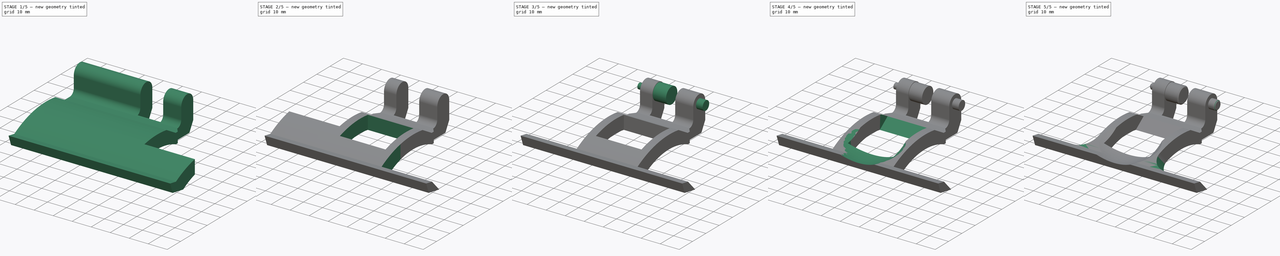
[diagram: build sequence overview — one tinted view per stage of 5, left to right]
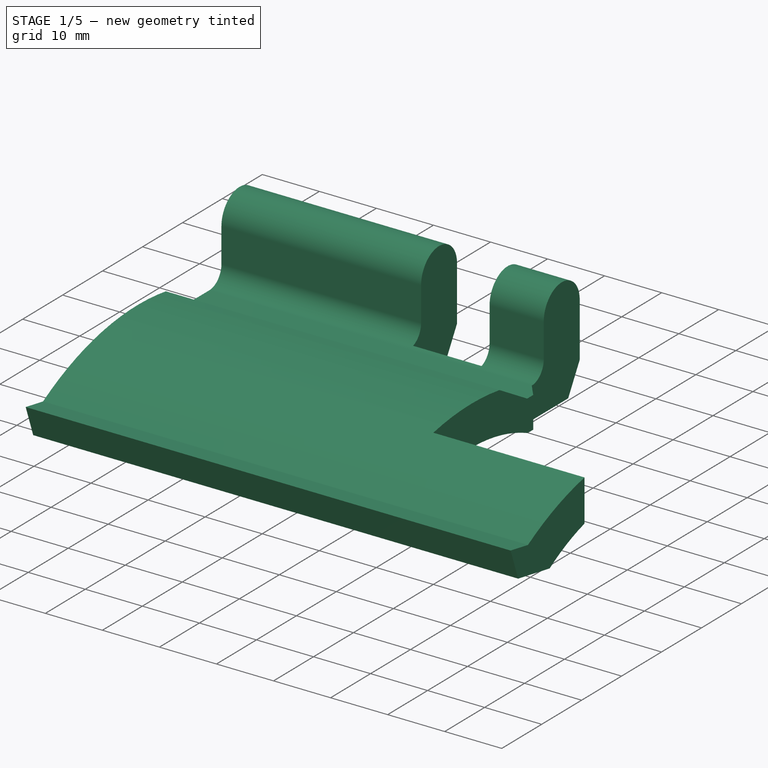
[diagram: stage 1 of 5 — iso view after this stage's code; geometry added in this stage tinted green]
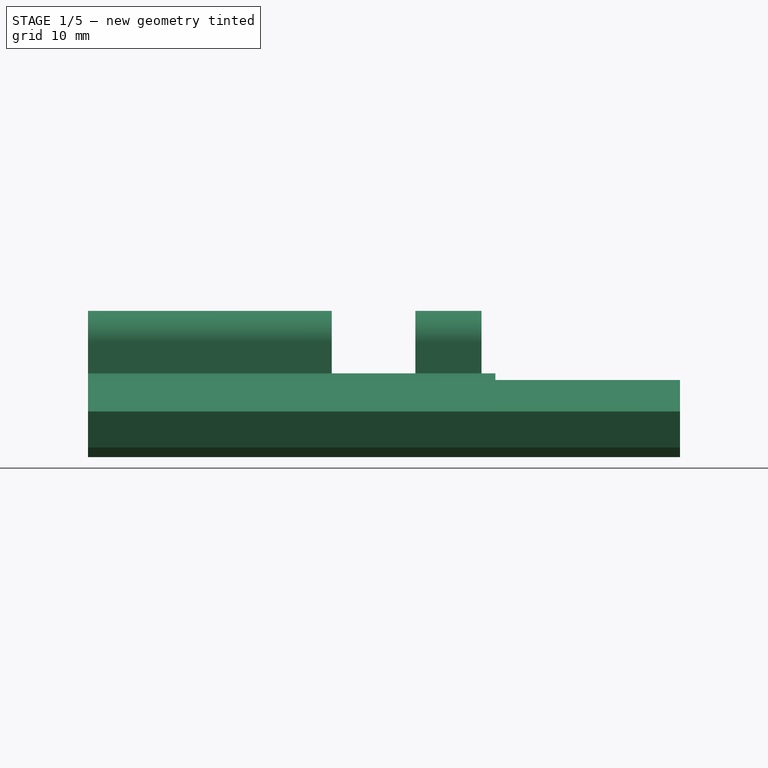
[diagram: stage 1 of 5 — front view after this stage's code; geometry added in this stage tinted green]
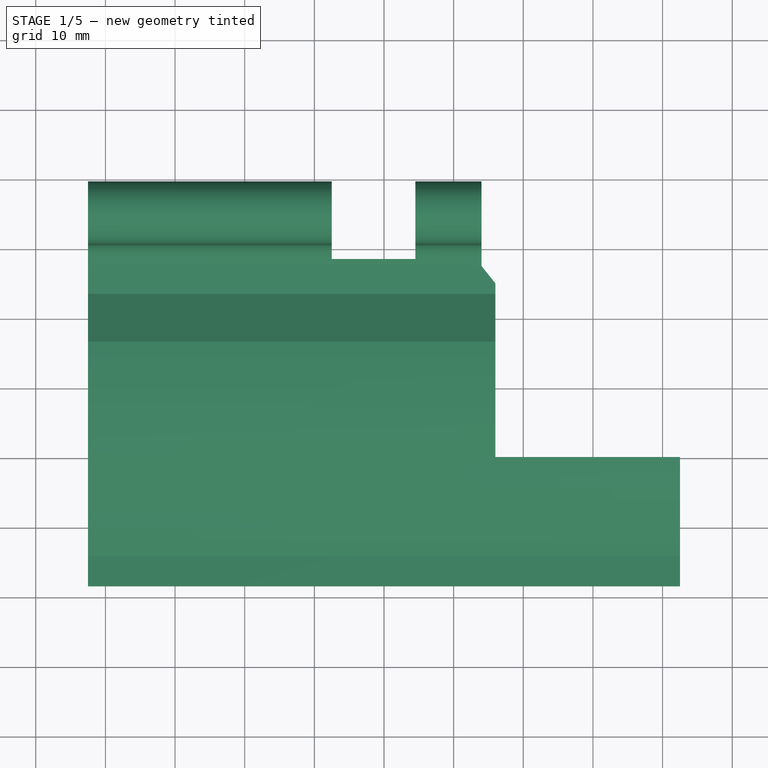
[diagram: stage 1 of 5 — top view after this stage's code; geometry added in this stage tinted green]
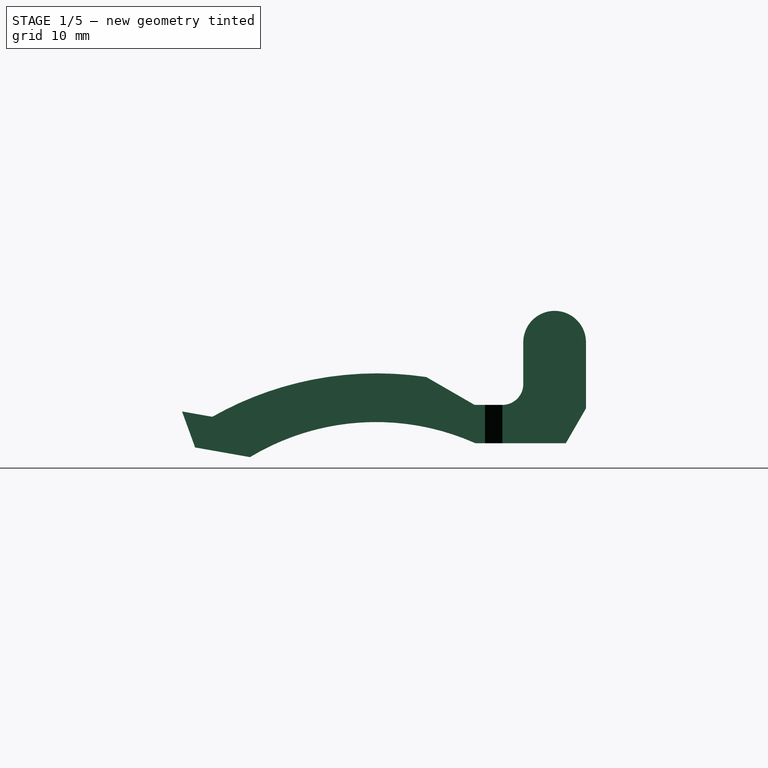
[diagram: stage 1 of 5 — right view after this stage's code; geometry added in this stage tinted green]
FCSTD DOCUMENT  (FreeCAD 0.18.4R3_voidlinux)
Label: pedal_plunger
License: All rights reserved
LicenseURL: http://en.wikipedia.org/wiki/All_rights_reserved
objects: Sketcher::SketchObject×11, PartDesign::Pocket×7, PartDesign::Pad×4, PartDesign::Mirrored×2, PartDesign::Plane×2, PartDesign::SubtractiveSphere×1, PartDesign::Chamfer×1, PartDesign::Fillet×1, PartDesign::Body×1, App::Part×1
note: 42 computed .brp shape members not serialized (recipe doc carries the construction recipe); baked Part::Feature solids carry a one-line shape summary decoded from their .brp

FEATURE [Sketcher::SketchObject] Sketch  label="base_sketch"
  MapMode = 5
  Placement = pos=(0,0,0) rot=(0.57735,0.57735,0.57735;2.0944rad)
  Support = -> [YZ_Plane001]
  sketch-geometry (14):
    g0: LineSegment StartX=23.6132 StartY=0 StartZ=0 EndX=36.6132 EndY=0 EndZ=0
    g1: LineSegment StartX=36.6132 StartY=0 StartZ=0 EndX=39.5 EndY=5 EndZ=0
    g2: LineSegment StartX=39.5 StartY=5 StartZ=0 EndX=39.5 EndY=14.5 EndZ=0
    g3: LineSegment StartX=30.5 StartY=14.5 StartZ=0 EndX=30.5 EndY=8.5 EndZ=0
    g4: ArcOfCircle CenterX=35 CenterY=14.5 CenterZ=0 NormalX=0 NormalY=0 NormalZ=1 AngleXU=0 Radius=4.5 StartAngle=0 EndAngle=3.14159
    g5: LineSegment [constr] StartX=30.5 StartY=19 StartZ=0 EndX=39.5 EndY=19 EndZ=0
    g6: LineSegment StartX=27.5 StartY=5.5 StartZ=0 EndX=23.5 EndY=5.5 EndZ=0
    g7: ArcOfCircle CenterX=9.35038 CenterY=-31.962 CenterZ=0 NormalX=0 NormalY=0 NormalZ=1 AngleXU=0 Radius=35 StartAngle=1.15107 EndAngle=2.114
    g8: LineSegment StartX=-8.74043 StartY=-2 StartZ=0 EndX=-16.6189 EndY=-0.610815 EndZ=0
    g9: LineSegment StartX=-16.6189 StartY=-0.610815 StartZ=0 EndX=-18.5 EndY=4.55749 EndZ=0
    g10: LineSegment StartX=-18.5 StartY=4.55749 StartZ=0 EndX=-14.1536 EndY=3.7911 EndZ=0
    g11: ArcOfCircle CenterX=27.5 CenterY=8.5 CenterZ=0 NormalX=0 NormalY=0 NormalZ=1 AngleXU=0 Radius=3 StartAngle=4.71239 EndAngle=6.28319
    g12: LineSegment StartX=23.5 StartY=5.5 StartZ=0 EndX=16.5718 EndY=9.5 EndZ=0
    g13: ArcOfCircle CenterX=9.5 CenterY=-37.9762 CenterZ=0 NormalX=0 NormalY=0 NormalZ=1 AngleXU=0 Radius=48 StartAngle=1.42293 EndAngle=2.08608
  constraints (43):
    c: PointOnObject(g0,g-1)
    c: PointOnObject(g0,g-1)
    c: Coincident(g1,g0)
    c: Coincident(g2,g1)
    c: Vertical(g2)
    c: Vertical(g3)
    c: Tangent(g2,g4) = -1.5708
    c: Tangent(g4,g3) = -1.5708
    c: Horizontal(g5)
    c: Tangent(g5,g4)
    c: PointOnObject(g5,g3)
    c: PointOnObject(g5,g2)
    c: Distance(g5) = 9
    c: DistanceY(g0,g5) = 19
    c: Horizontal(g6)
    c: Coincident(g9,g8)
    c: Coincident(g10,g9)
    c: Distance(g6) = 4
    c: Angle(g1,g0) = 2.0944
    c: DistanceY(g-1,g1) = 5
    c: Tangent(g11,g6) = 1.5708
    c: Tangent(g3,g11) = 1.5708
    c: Radius(g11) = 3
    c: Distance(g3) = 6
    c: DistanceX(g4) = 35
    c: Radius(g7) = 35
    c: Angle(g8,g-1) = 0.174533
    c: Distance(g9) = 5.5
    c: Angle(g8,g9) = 2.0944
    c: DistanceX(g9,g2) = 58
    c: Coincident(g7,g0)
    c: Distance(g0) = 13
    c: Coincident(g12,g6)
    c: Coincident(g13,g12)
    c: Coincident(g13,g10)
    c: Angle(g12,g-1) = 0.523599
    c: Distance(g12) = 8
    c: Radius(g13) = 48
    c: DistanceX(g-2,g13) = 9.5
    c: Parallel(g10,g8)
    c: Coincident(g8,g7)
    c: DistanceY(g7,g-1) = 2
    c: Distance(g8) = 8
FEATURE [PartDesign::Pad] Pad  label="base"
  Length = 85
  Length2 = 100
  Midplane = true
  Placement = pos=(0,0,0) rot=(0.57735,0.57735,0.57735;2.0944rad)
  Profile = -> Sketch
  Refine = true
  Type = 0
FEATURE [Sketcher::SketchObject] Sketch001  label="middle_groove_sketch"
  ExternalGeometry = -> [Pad]
  MapMode = 5
  Placement = pos=(0,0,0) rot=(0.707107,0.707107,0;3.14159rad)
  Support = -> [Pad]
  sketch-geometry (4):
    g0: LineSegment StartX=28.5 StartY=4.5 StartZ=0 EndX=39.5 EndY=4.5 EndZ=0
    g1: LineSegment StartX=39.5 StartY=4.5 StartZ=0 EndX=39.5 EndY=-7.5 EndZ=0
    g2: LineSegment StartX=39.5 StartY=-7.5 StartZ=0 EndX=28.5 EndY=-7.5 EndZ=0
    g3: LineSegment StartX=28.5 StartY=-7.5 StartZ=0 EndX=28.5 EndY=4.5 EndZ=0
  constraints (12):
    c: Coincident(g0,g1)
    c: Coincident(g1,g2)
    c: Coincident(g2,g3)
    c: Coincident(g3,g0)
    c: Horizontal(g0)
    c: Horizontal(g2)
    c: Vertical(g3)
    c: PointOnObject(g1,g-3)
    c: Distance(g1) = 12
    c: Distance(g0) = 11
    c: DistanceY(g-1,g1) = -7.5
    c: Vertical(g1)
FEATURE [PartDesign::Pocket] Pocket  label="middle_groove"
  BaseFeature = -> Pad
  Length = 5
  Length2 = 100
  Placement = pos=(0,0,0) rot=(0.57735,0.57735,0.57735;2.0944rad)
  Profile = -> Sketch001
  Refine = true
  Type = 1
FEATURE [Sketcher::SketchObject] Sketch002  label="side_cut_sketch"
  ExternalGeometry = -> [Pocket]
  MapMode = 5
  Placement = pos=(0,0,0) rot=(0.707107,0.707107,0;3.14159rad)
  Support = -> [Pocket]
  sketch-geometry (6):
    g0: LineSegment StartX=0 StartY=42.5 StartZ=0 EndX=39.5 EndY=42.5 EndZ=0
    g1: LineSegment StartX=39.5 StartY=42.5 StartZ=0 EndX=39.5 EndY=14 EndZ=0
    g2: LineSegment StartX=39.5 StartY=14 StartZ=0 EndX=27.5 EndY=14 EndZ=0
    g3: LineSegment StartX=27.5 StartY=14 StartZ=0 EndX=25 EndY=16 EndZ=0
    g4: LineSegment StartX=25 StartY=16 StartZ=0 EndX=0 EndY=16 EndZ=0
    g5: LineSegment StartX=0 StartY=16 StartZ=0 EndX=0 EndY=42.5 EndZ=0
  constraints (17):
    c: Horizontal(g0)
    c: Coincident(g0,g1)
    c: Vertical(g1)
    c: Coincident(g1,g2)
    c: Horizontal(g2)
    c: Coincident(g2,g3)
    c: Coincident(g3,g4)
    c: Horizontal(g4)
    c: Coincident(g4,g5)
    c: Vertical(g5)
    c: Coincident(g0,g5)
    c: Distance(g2) = 12
    c: PointOnObject(g0,g-2)
    c: Distance(g-1,g4) = 16
    c: Distance(g4) = 25
    c: Coincident(g0,g-5)
    c: DistanceY(g-1,g1) = 14
FEATURE [PartDesign::Pocket] Pocket001  label="side_cut"
  BaseFeature = -> Pocket
  Length = 5
  Length2 = 100
  Placement = pos=(0,0,0) rot=(0.57735,0.57735,0.57735;2.0944rad)
  Profile = -> Sketch002
  Refine = true
  Type = 1
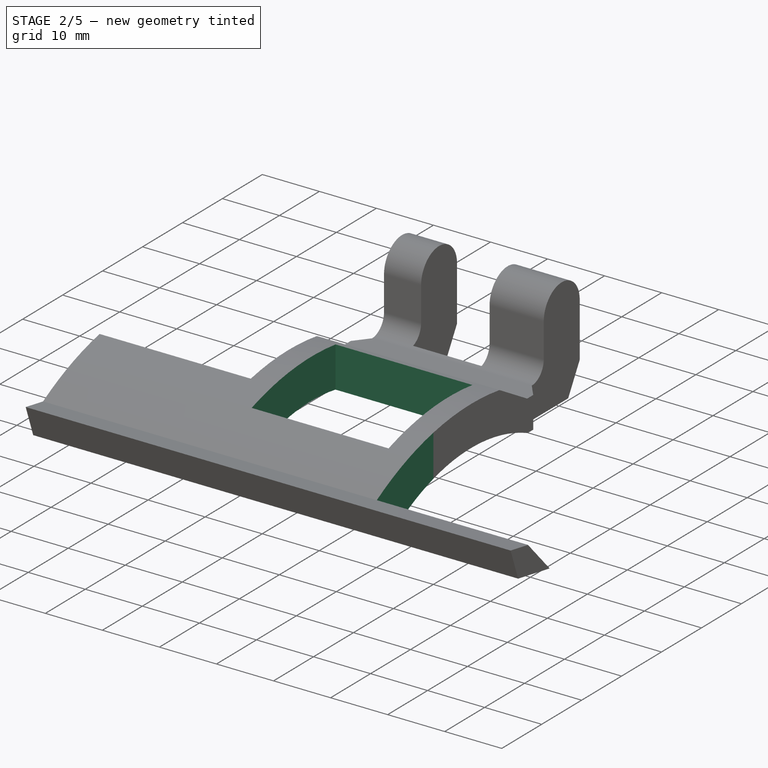
[diagram: stage 2 of 5 — iso view after this stage's code; geometry added in this stage tinted green]
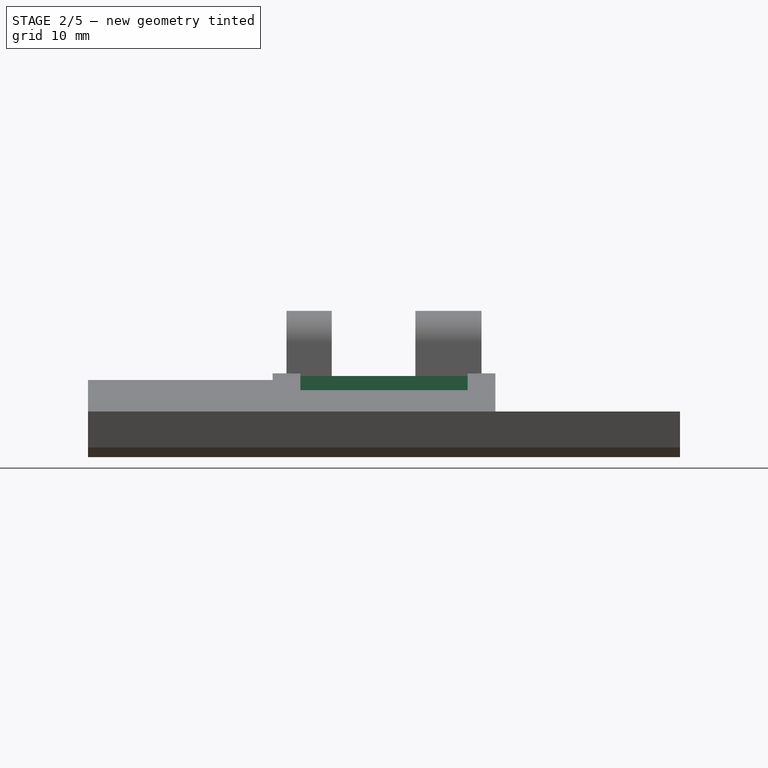
[diagram: stage 2 of 5 — front view after this stage's code; geometry added in this stage tinted green]
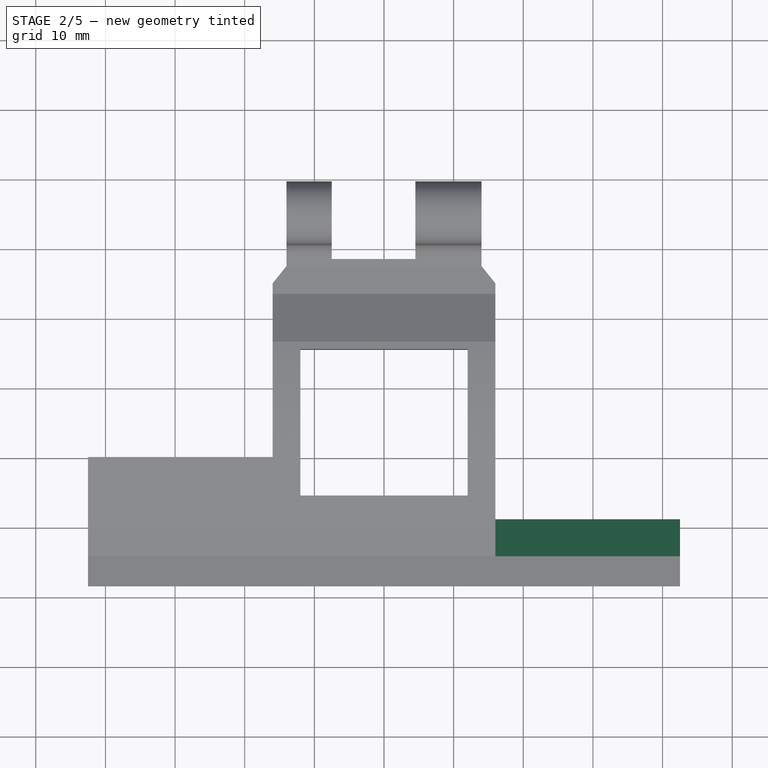
[diagram: stage 2 of 5 — top view after this stage's code; geometry added in this stage tinted green]
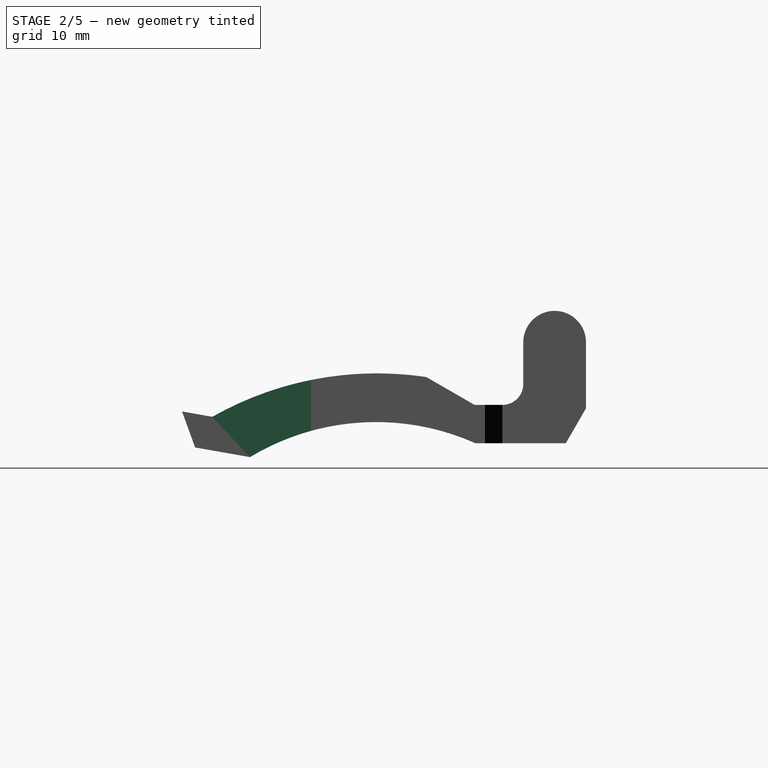
[diagram: stage 2 of 5 — right view after this stage's code; geometry added in this stage tinted green]
FEATURE [PartDesign::Mirrored] Mirrored  label="mirror_side_cut"
  BaseFeature = -> Pocket001
  MirrorPlane = -> YZ_Plane001
  Originals = -> [Pocket001]
  Placement = pos=(0,0,0) rot=(0.57735,0.57735,0.57735;2.0944rad)
  Refine = true
FEATURE [Sketcher::SketchObject] Sketch003  label="center_hole_sketch"
  ExternalGeometry = -> [Mirrored]
  MapMode = 5
  Placement = pos=(0,0,0) rot=(0.707107,0.707107,0;3.14159rad)
  Support = -> [Mirrored]
  sketch-geometry (4):
    g0: LineSegment StartX=-5.5 StartY=12 StartZ=0 EndX=15.5 EndY=12 EndZ=0
    g1: LineSegment StartX=15.5 StartY=12 StartZ=0 EndX=15.5 EndY=-12 EndZ=0
    g2: LineSegment StartX=15.5 StartY=-12 StartZ=0 EndX=-5.5 EndY=-12 EndZ=0
    g3: LineSegment StartX=-5.5 StartY=-12 StartZ=0 EndX=-5.5 EndY=12 EndZ=0
  constraints (11):
    c: Coincident(g0,g1)
    c: Coincident(g1,g2)
    c: Coincident(g2,g3)
    c: Coincident(g3,g0)
    c: Horizontal(g0)
    c: Horizontal(g2)
    c: Vertical(g3)
    c: Symmetric(g1,g0,g-1)
    c: Distance(g1) = 24
    c: DistanceX(g0,g-3) = 13
    c: Distance(g0) = 21
FEATURE [PartDesign::Pocket] Pocket002  label="center_hole"
  BaseFeature = -> Mirrored
  Length = 5
  Length2 = 100
  Midplane = true
  Placement = pos=(0,0,0) rot=(0.57735,0.57735,0.57735;2.0944rad)
  Profile = -> Sketch003
  Refine = true
  Type = 1
FEATURE [Sketcher::SketchObject] Sketch004  label="wing_cut_sketch"
  ExternalGeometry = -> [Pocket002]
  MapMode = 5
  Placement = pos=(42.5,-9.3e-15,9.3e-15) rot=(0.57735,0.57735,0.57735;2.0944rad)
  Support = -> [Pocket002]
  sketch-geometry (3):
    g0: LineSegment StartX=0 StartY=9.0743 StartZ=0 EndX=0 EndY=-11.3507 EndZ=0
    g1: LineSegment StartX=0 StartY=-11.3507 StartZ=0 EndX=-19.092 EndY=9.0743 EndZ=0
    g2: LineSegment StartX=-19.092 StartY=9.0743 StartZ=0 EndX=0 EndY=9.0743 EndZ=0
  constraints (8):
    c: Coincident(g-5,g0)
    c: PointOnObject(g0,g-2)
    c: Coincident(g0,g1)
    c: Coincident(g1,g2)
    c: Coincident(g2,g0)
    c: Horizontal(g2)
    c: PointOnObject(g-4,g1)
    c: PointOnObject(g-3,g1)
FEATURE [PartDesign::Pocket] Pocket003  label="wing_cut"
  BaseFeature = -> Pocket002
  Length = 0
  Length2 = 100
  Placement = pos=(0,0,0) rot=(0.57735,0.57735,0.57735;2.0944rad)
  Profile = -> Sketch004
  Refine = true
  Type = 3
  UpToFace = -> Pocket002 [Face12]
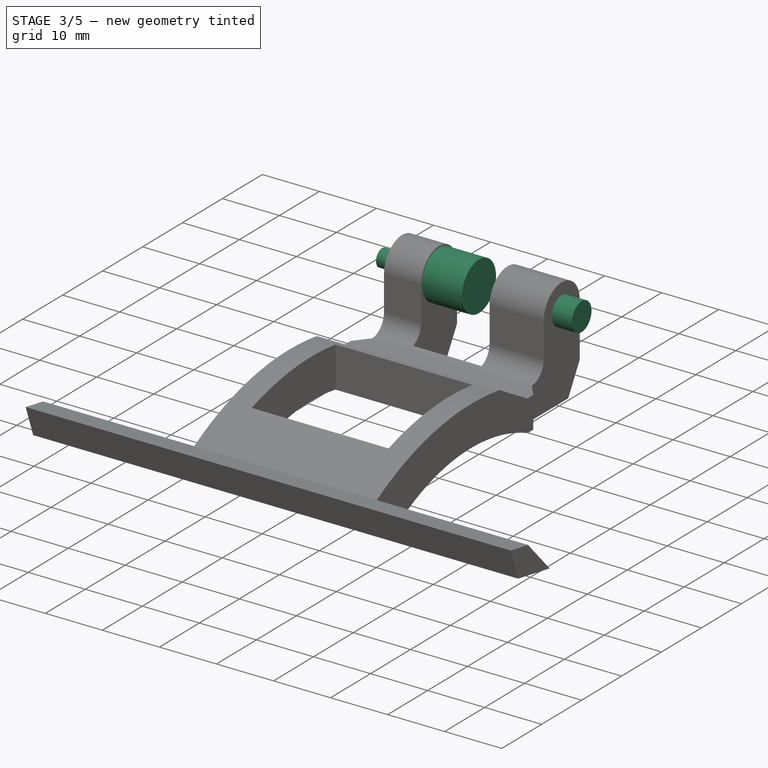
[diagram: stage 3 of 5 — iso view after this stage's code; geometry added in this stage tinted green]
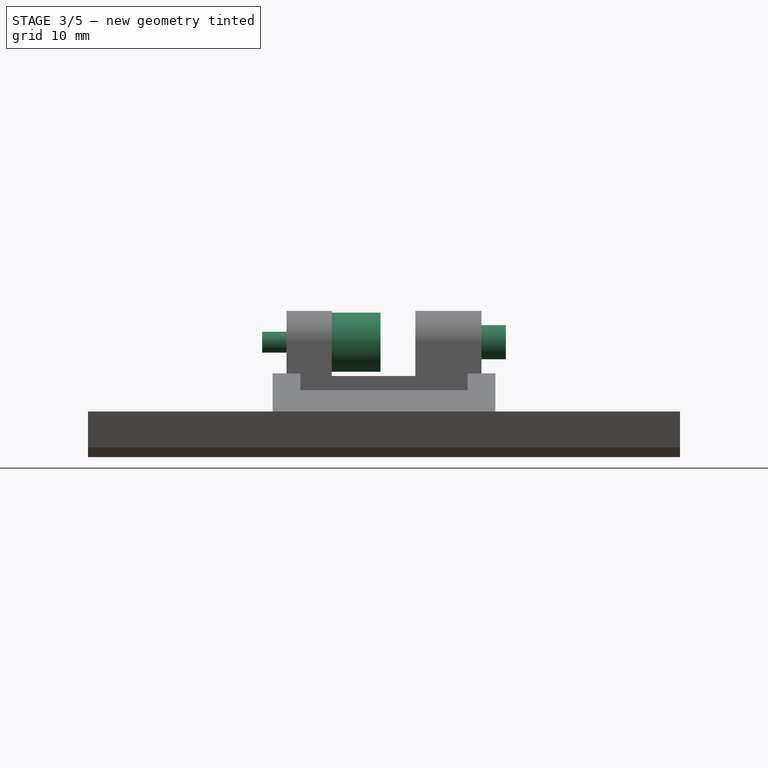
[diagram: stage 3 of 5 — front view after this stage's code; geometry added in this stage tinted green]
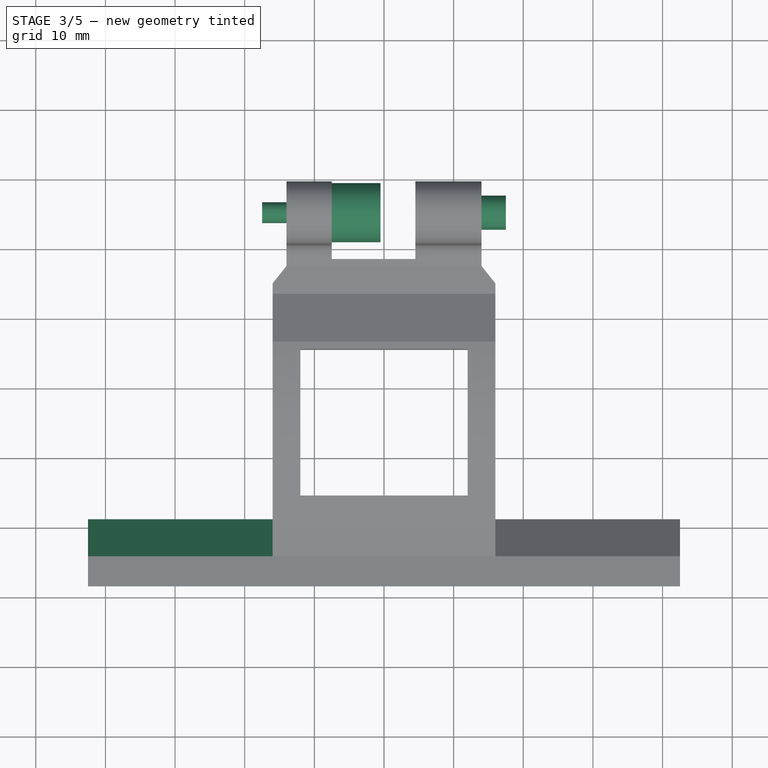
[diagram: stage 3 of 5 — top view after this stage's code; geometry added in this stage tinted green]
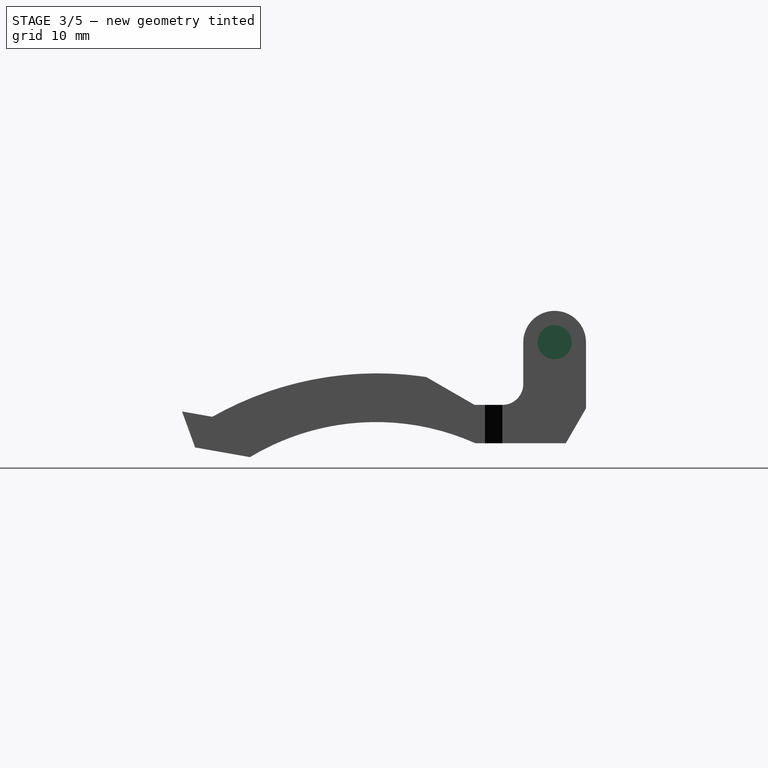
[diagram: stage 3 of 5 — right view after this stage's code; geometry added in this stage tinted green]
FEATURE [PartDesign::Mirrored] Mirrored001  label="mirror_wing_cut"
  BaseFeature = -> Pocket003
  MirrorPlane = -> YZ_Plane001
  Originals = -> [Pocket003]
  Placement = pos=(0,0,0) rot=(0.57735,0.57735,0.57735;2.0944rad)
  Refine = true
FEATURE [Sketcher::SketchObject] Sketch006  label="large_pivot_sketch"
  ExternalGeometry = -> [Mirrored001]
  MapMode = 5
  Placement = pos=(14,-3.1e-15,1.32e-14) rot=(0.57735,0.57735,0.57735;2.0944rad)
  Support = -> [Mirrored001]
  sketch-geometry (1):
    g0: Circle CenterX=35 CenterY=14.5 CenterZ=0 NormalX=0 NormalY=0 NormalZ=1 AngleXU=0 Radius=2.45
  constraints (2):
    c: Radius(g0) = 2.45
    c: Coincident(g0,g-3)
FEATURE [PartDesign::Pad] Pad001  label="large_pivot"
  BaseFeature = -> Mirrored001
  Length = 3.5
  Length2 = 100
  Placement = pos=(0,0,0) rot=(0.57735,0.57735,0.57735;2.0944rad)
  Profile = -> Sketch006
  Refine = true
  Type = 0
FEATURE [Sketcher::SketchObject] Sketch007  label="small_pivot_sketch"
  ExternalGeometry = -> [Pad001]
  MapMode = 5
  Placement = pos=(-14,6.2e-15,1.01e-14) rot=(-0.57735,-0.57735,0.57735;2.0944rad)
  Support = -> [Pad001]
  sketch-geometry (1):
    g0: Circle CenterX=35 CenterY=-14.5 CenterZ=0 NormalX=0 NormalY=0 NormalZ=1 AngleXU=0 Radius=1.5
  constraints (2):
    c: Radius(g0) = 1.5
    c: Coincident(g0,g-3)
FEATURE [PartDesign::Pad] Pad002  label="small_pivot"
  BaseFeature = -> Pad001
  Length = 3.5
  Length2 = 100
  Placement = pos=(0,0,0) rot=(0.57735,0.57735,0.57735;2.0944rad)
  Profile = -> Sketch007
  Refine = true
  Type = 0
FEATURE [Sketcher::SketchObject] Sketch008  label="spring_center_sketch"
  ExternalGeometry = -> [Pad002]
  MapMode = 5
  Placement = pos=(-7.5,1.7e-15,-4.6e-15) rot=(0.57735,0.57735,0.57735;2.0944rad)
  Support = -> [Pad002]
  sketch-geometry (1):
    g0: Circle CenterX=35 CenterY=14.5 CenterZ=0 NormalX=0 NormalY=0 NormalZ=1 AngleXU=0 Radius=4.25
  constraints (2):
    c: Radius(g0) = 4.25
    c: Coincident(g0,g-3)
FEATURE [PartDesign::Pad] Pad003  label="spring_center"
  BaseFeature = -> Pad002
  Length = 7
  Length2 = 100
  Placement = pos=(0,0,0) rot=(0.57735,0.57735,0.57735;2.0944rad)
  Profile = -> Sketch008
  Refine = true
  Type = 0
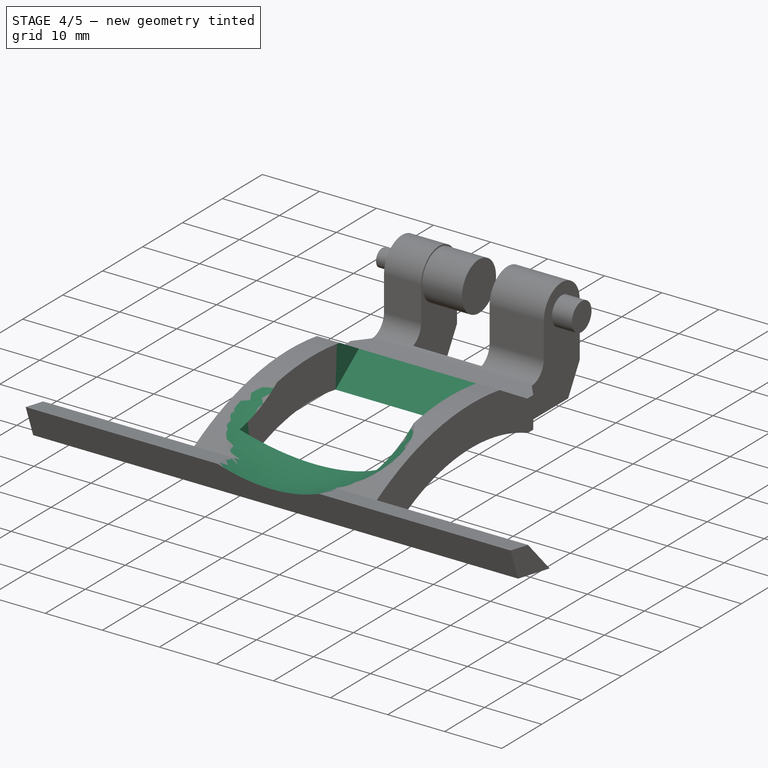
[diagram: stage 4 of 5 — iso view after this stage's code; geometry added in this stage tinted green]
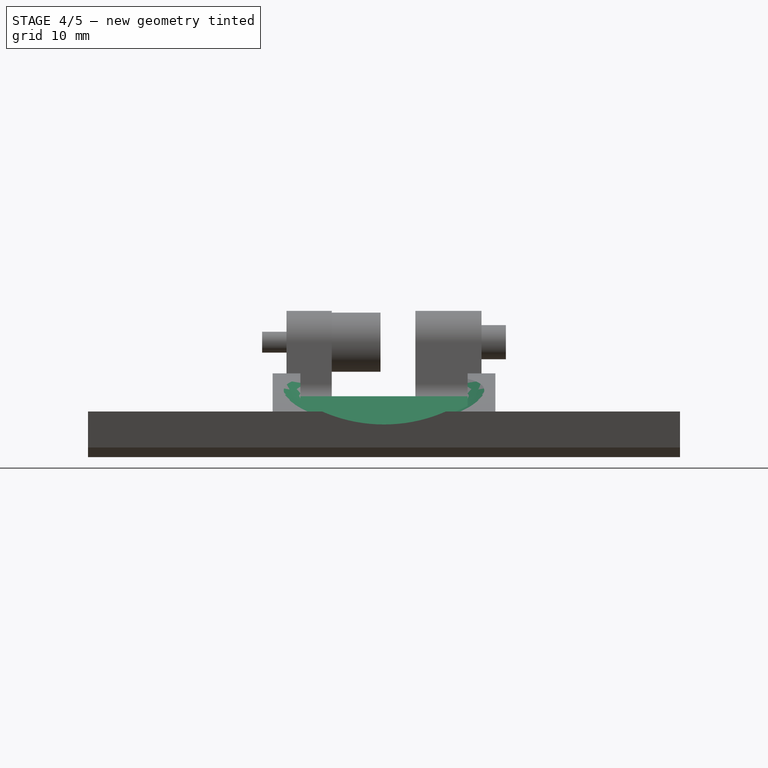
[diagram: stage 4 of 5 — front view after this stage's code; geometry added in this stage tinted green]
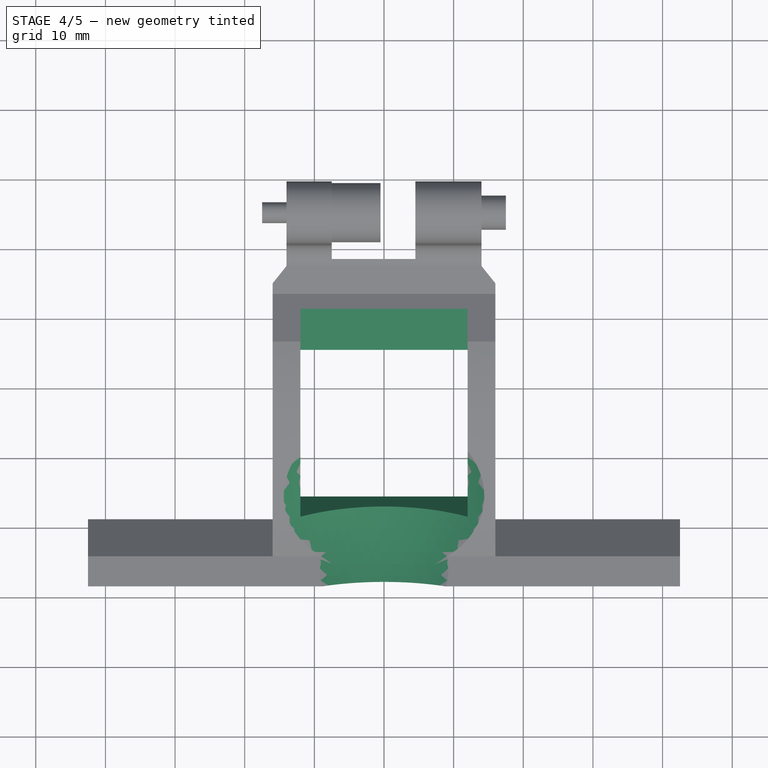
[diagram: stage 4 of 5 — top view after this stage's code; geometry added in this stage tinted green]
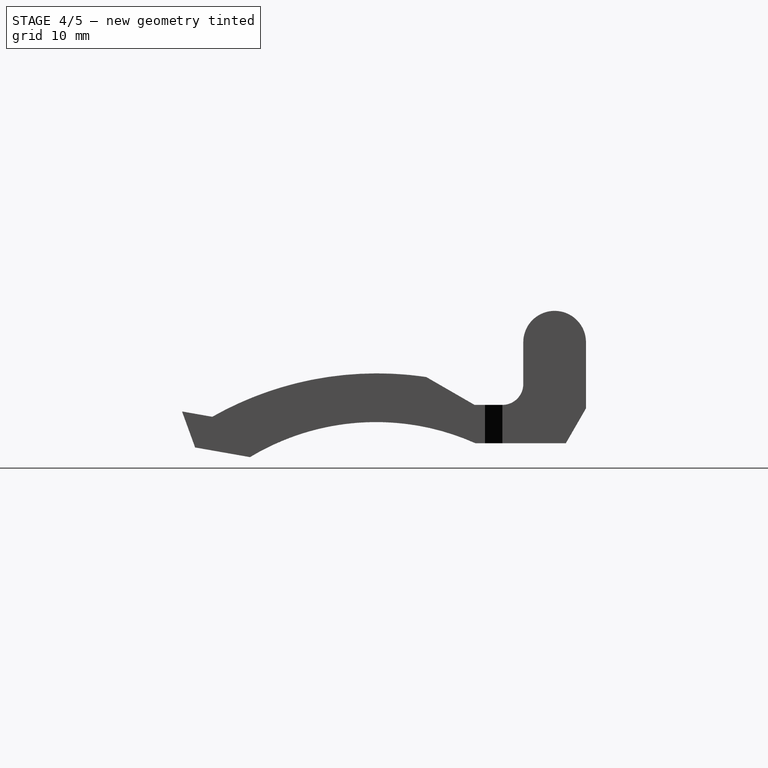
[diagram: stage 4 of 5 — right view after this stage's code; geometry added in this stage tinted green]
FEATURE [PartDesign::Plane] DatumPlane
  Length = 98.9879
  MapMode = 13
  Placement = pos=(4.66667,24.8333,3.66667) rot=(0,0.453778,0.891115;3.14159rad)
  ResizeMode = 0
  Support = -> [Pad003]
  Width = 71.5353
FEATURE [Sketcher::SketchObject] Sketch009
  ExternalGeometry = -> [Pad003]
  MapMode = 5
  Placement = pos=(4.66667,24.8333,3.66667) rot=(0,0.453778,0.891115;3.14159rad)
  Support = -> [DatumPlane]
  sketch-geometry (4):
    g0: LineSegment StartX=-7.33333 StartY=10.3264 StartZ=0 EndX=16.6667 EndY=10.3264 EndZ=0
    g1: LineSegment StartX=16.6667 StartY=10.3264 StartZ=0 EndX=16.6667 EndY=4.54081 EndZ=0
    g2: LineSegment StartX=16.6667 StartY=4.54081 StartZ=0 EndX=-7.33333 EndY=4.54081 EndZ=0
    g3: LineSegment StartX=-7.33333 StartY=4.54081 StartZ=0 EndX=-7.33333 EndY=10.3264 EndZ=0
  constraints (10):
    c: Coincident(g0,g1)
    c: Coincident(g1,g2)
    c: Coincident(g2,g3)
    c: Coincident(g3,g0)
    c: Horizontal(g0)
    c: Horizontal(g2)
    c: Vertical(g1)
    c: Vertical(g3)
    c: Coincident(g0,g-4)
    c: Coincident(g1,g-3)
FEATURE [PartDesign::Pocket] Pocket004  label="enlarge_center_hole"
  BaseFeature = -> Pad003
  Length = 0
  Length2 = 100
  Placement = pos=(0,0,0) rot=(0.57735,0.57735,0.57735;2.0944rad)
  Profile = -> Sketch009
  Refine = true
  Type = 1
FEATURE [PartDesign::Plane] DatumPlane001
  Length = 99.8444
  MapMode = 13
  Placement = pos=(-5.33333,-6.58014,-0.845804) rot=(1,0,0;0.490694rad)
  ResizeMode = 0
  Support = -> [Pocket004]
  Width = 79.655
FEATURE [Sketcher::SketchObject] Sketch010
  ExternalGeometry = -> [Pocket004]
  MapMode = 5
  Placement = pos=(-5.33333,-6.58014,-0.845804) rot=(1,0,0;0.490694rad)
  Support = -> [DatumPlane001]
  sketch-geometry (4):
    g0: LineSegment StartX=-6.66667 StartY=4.94203 StartZ=0 EndX=17.3333 EndY=4.94203 EndZ=0
    g1: LineSegment StartX=17.3333 StartY=4.94203 StartZ=0 EndX=17.3333 EndY=1.22464 EndZ=0
    g2: LineSegment StartX=17.3333 StartY=1.22464 StartZ=0 EndX=-6.66667 EndY=1.22464 EndZ=0
    g3: LineSegment StartX=-6.66667 StartY=1.22464 StartZ=0 EndX=-6.66667 EndY=4.94203 EndZ=0
  constraints (10):
    c: Coincident(g0,g1)
    c: Coincident(g1,g2)
    c: Coincident(g2,g3)
    c: Coincident(g3,g0)
    c: Horizontal(g0)
    c: Horizontal(g2)
    c: Vertical(g1)
    c: Vertical(g3)
    c: Coincident(g0,g-3)
    c: Coincident(g1,g-4)
FEATURE [PartDesign::Pocket] Pocket005  label="enlarge_center_hole"
  BaseFeature = -> Pocket004
  Length = 9
  Length2 = 100
  Placement = pos=(0,0,0) rot=(0.57735,0.57735,0.57735;2.0944rad)
  Profile = -> Sketch010
  Refine = true
  Reversed = true
  Type = 1
FEATURE [PartDesign::SubtractiveSphere] Sphere  label="sphere_cut_center_hole"
  Angle1 = -90
  Angle2 = 90
  Angle3 = 360
  AttacherType = Attacher::AttachEngine3D
  AttachmentOffset = pos=(27,0,-12) rot=(0,0,1;0rad)
  BaseFeature = -> Pocket005
  MapMode = 2
  Placement = pos=(-1.52e-14,-12,27) rot=(0.57735,0.57735,0.57735;4.18879rad)
  Radius = 25
  Refine = true
  Support = -> [Z_Axis001]
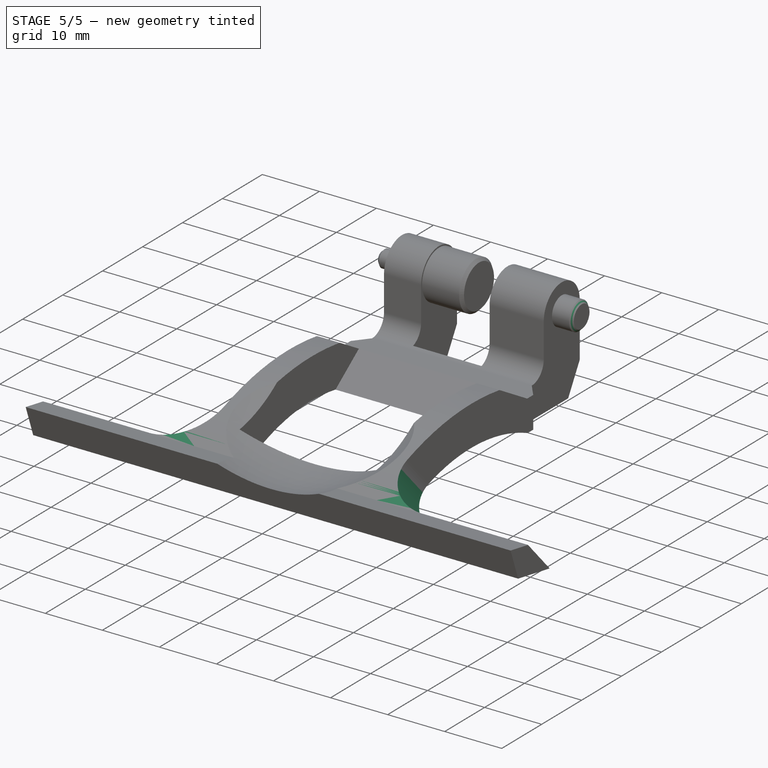
[diagram: stage 5 of 5 — iso view after this stage's code; geometry added in this stage tinted green]
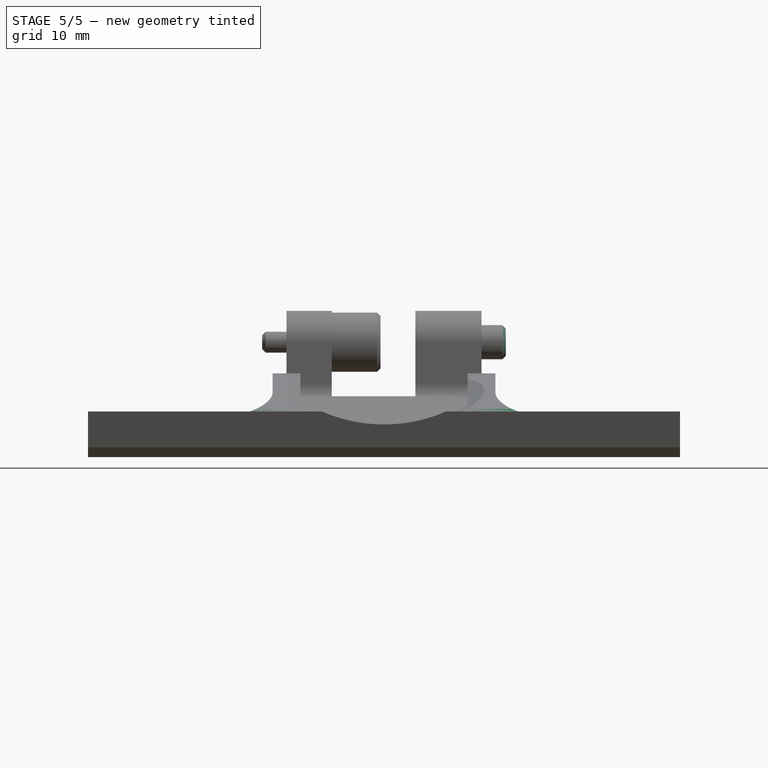
[diagram: stage 5 of 5 — front view after this stage's code; geometry added in this stage tinted green]
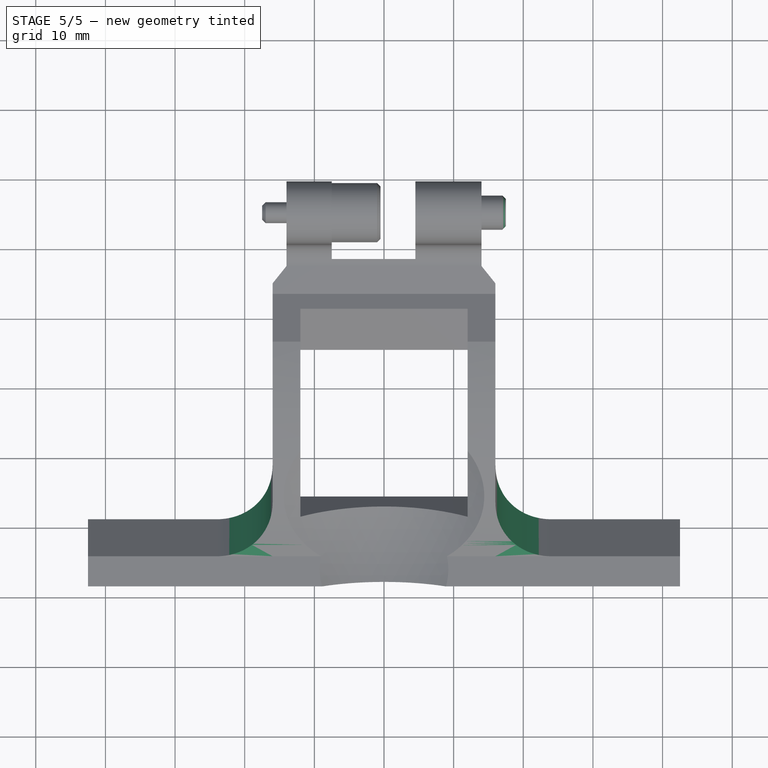
[diagram: stage 5 of 5 — top view after this stage's code; geometry added in this stage tinted green]
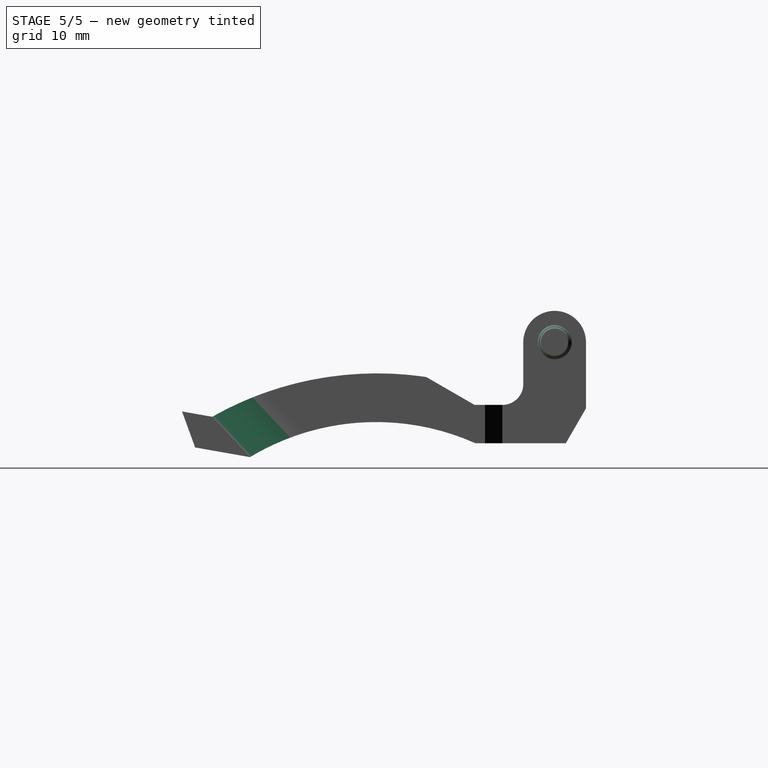
[diagram: stage 5 of 5 — right view after this stage's code; geometry added in this stage tinted green]
FEATURE [Sketcher::SketchObject] Sketch011
  ExternalGeometry = -> [Sphere]
  MapMode = 5
  Placement = pos=(6.44e-14,-12,1.07e-14) rot=(0,1,0;3.14159rad)
  Support = -> [Sphere]
  sketch-geometry (4):
    g0: LineSegment StartX=4.5 StartY=40.5 StartZ=0 EndX=6.5 EndY=40.5 EndZ=0
    g1: LineSegment StartX=6.5 StartY=40.5 StartZ=0 EndX=6.5 EndY=36.5 EndZ=0
    g2: LineSegment StartX=6.5 StartY=36.5 StartZ=0 EndX=4.5 EndY=36.5 EndZ=0
    g3: LineSegment StartX=4.5 StartY=36.5 StartZ=0 EndX=4.5 EndY=40.5 EndZ=0
  constraints (12):
    c: Coincident(g0,g1)
    c: Coincident(g1,g2)
    c: Coincident(g2,g3)
    c: Coincident(g3,g0)
    c: Horizontal(g0)
    c: Horizontal(g2)
    c: Vertical(g1)
    c: Vertical(g3)
    c: PointOnObject(g0,g-3)
    c: Distance(g0) = 2
    c: Distance(g0,g-3) = 1
    c: Distance(g3) = 4
FEATURE [PartDesign::Pocket] Pocket006  label="spring_slot"
  BaseFeature = -> Sphere
  Length = 2
  Length2 = 100
  Placement = pos=(-1.5e-14,-12,27) rot=(0.57735,0.57735,0.57735;4.18879rad)
  Profile = -> Sketch011
  Refine = true
  Type = 0
FEATURE [PartDesign::Chamfer] Chamfer  label="pivot_chamfer"
  Base = -> Pocket006 [Face41,Face40,Face39]
  BaseFeature = -> Pocket006
  Placement = pos=(-1.5e-14,-12,27) rot=(0.57735,0.57735,0.57735;4.18879rad)
  Size = 0.5
FEATURE [PartDesign::Fillet] Fillet
  Base = -> Chamfer [Edge72,Edge84]
  BaseFeature = -> Chamfer
  Placement = pos=(-1.5e-14,-12,27) rot=(0.57735,0.57735,0.57735;4.18879rad)
  Radius = 8
FEATURE [PartDesign::Body] Body
  Group = -> [Sketch,Pad,Sketch001,Pocket,Sketch002,Pocket001,Mirrored,Sketch003,Pocket002,Sketch004,Pocket003,Mirrored001,Sketch006,Pad001,Sketch007,Sketch008,Pad002,Pad003,DatumPlane,Sketch009,Pocket004,DatumPlane001,Sketch010,Pocket005,Sphere,Sketch011,Pocket006,Chamfer,Fillet]
  Origin = -> Origin001
  Tip = -> Fillet
FEATURE [App::Part] Part  label="push_pedal"
  Group = -> [Body]
  Origin = -> Origin
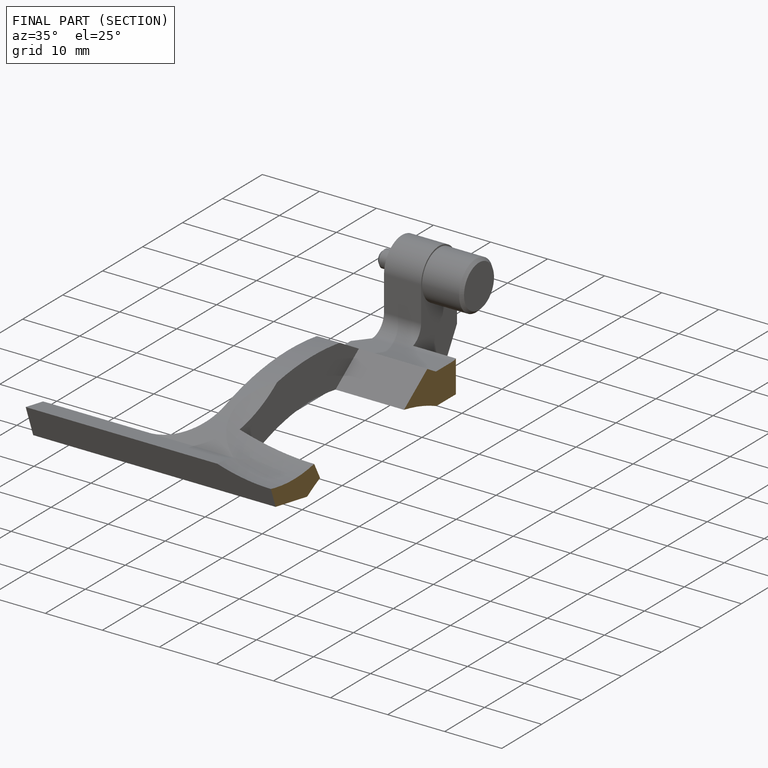
[diagram: finished part — half-section view (interior)]
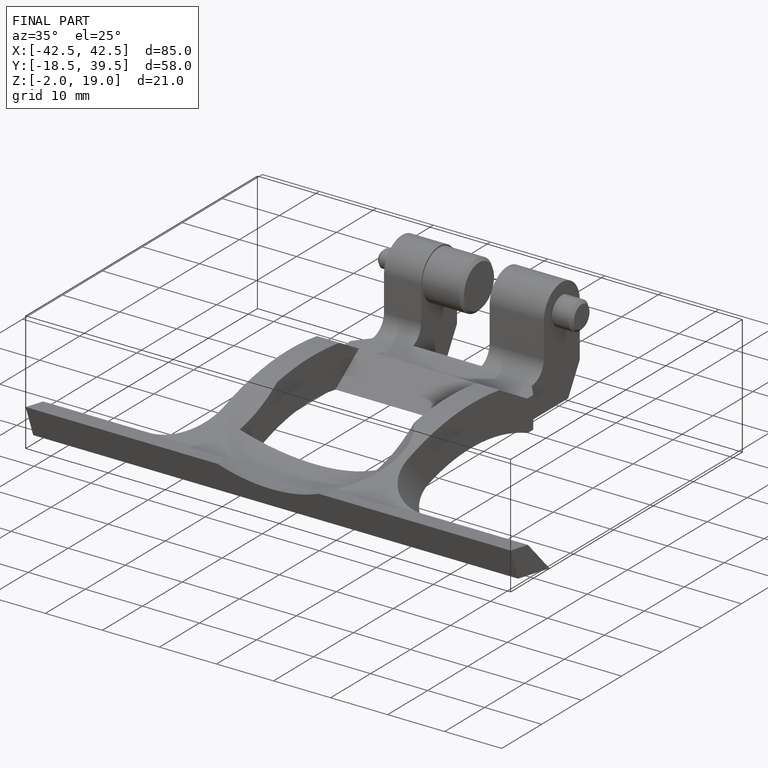
[diagram: finished part — iso view with bounding-box wireframe]
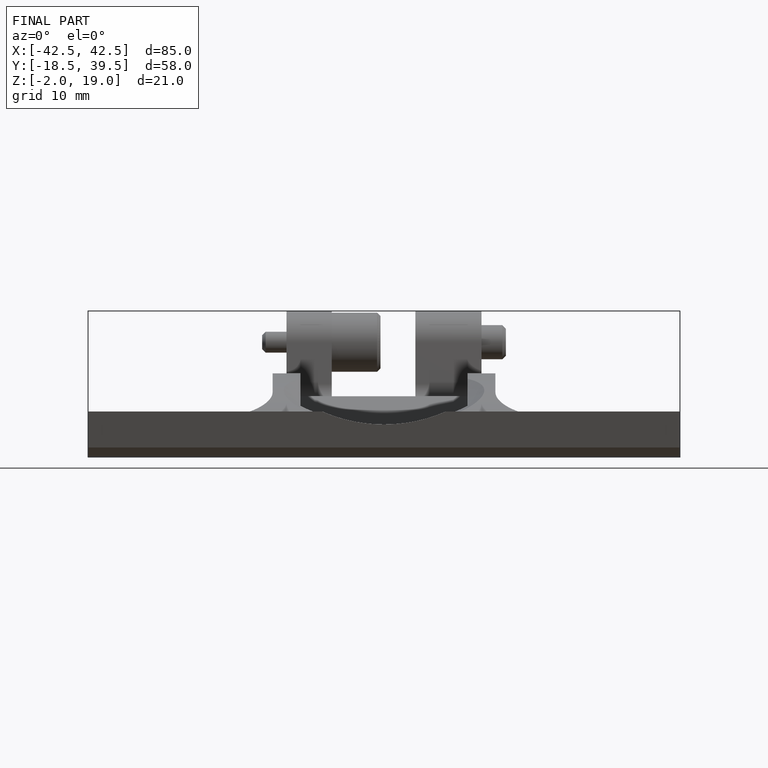
[diagram: finished part — front view with bounding-box wireframe]
